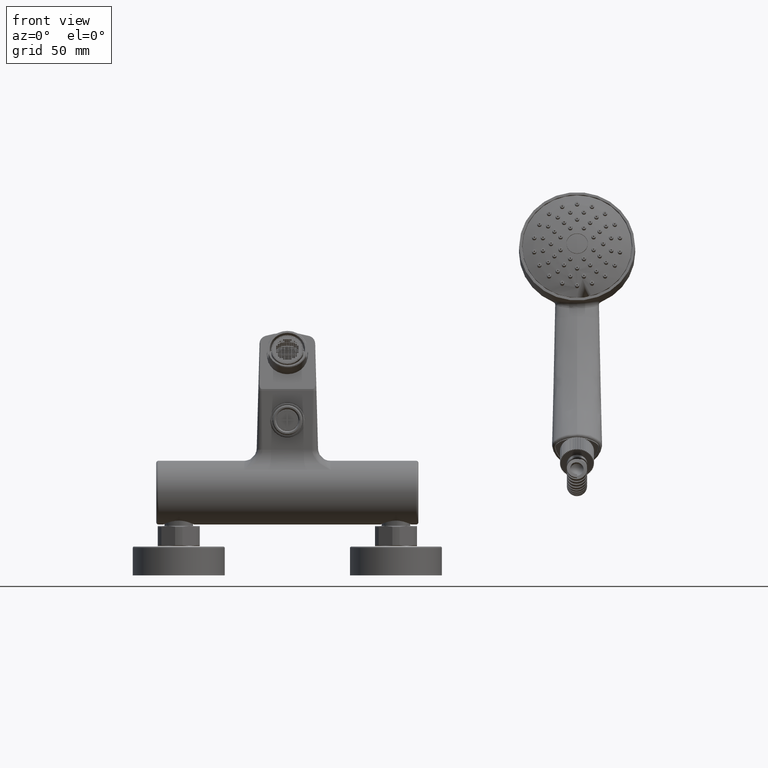
[diagram: clean part render]
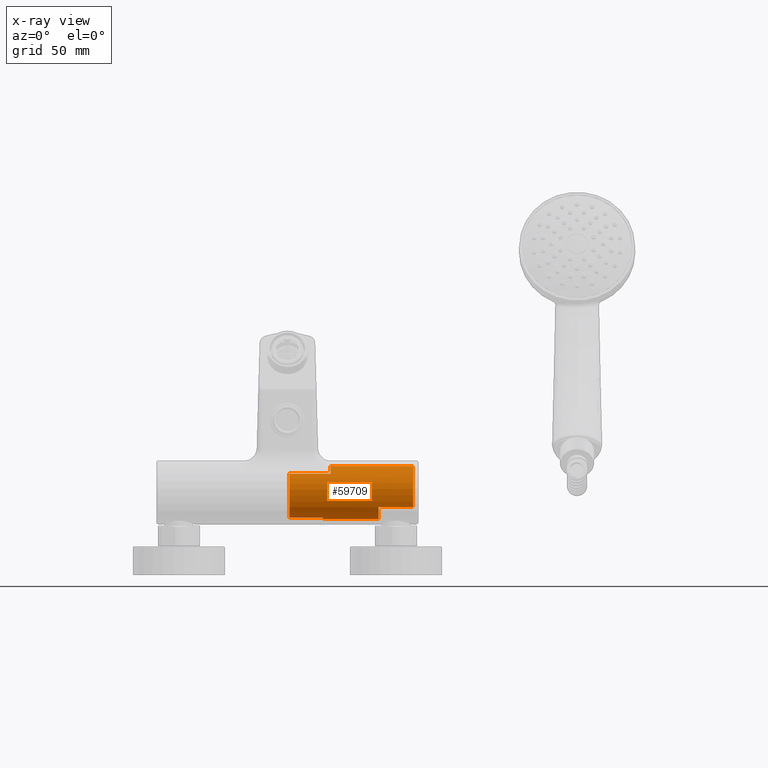
[diagram: x-ray — body ghosted, one internal face saturated and labeled with its STEP entity id]
A machine part, front view, then the same camera in x-ray: the body is ghosted and one INTERNAL B-rep face — a face not visible from any outside direction — is saturated and labeled: STEP entity #59709.
In plain terms, the highlighted cylindrical surface (edge-blend (fillet) strip) has radius 18.25 mm, axis along (1, 0, 0).
Its self-contained STEP definition (entity closure, byte-faithful):
#7910=CARTESIAN_POINT('',(8.675E1,0.E0,0.E0));
#7911=DIRECTION('',(1.E0,0.E0,0.E0));
#7912=DIRECTION('',(0.E0,0.E0,1.E0));
#7913=AXIS2_PLACEMENT_3D('',#7910,#7911,#7912);
#7920=DIRECTION('',(1.E0,0.E0,0.E0));
#7921=VECTOR('',#7920,3.856582964278E1);
#7922=CARTESIAN_POINT('',(2.443417035722E1,0.E0,-1.825E1));
#7923=LINE('',#7922,#7921);
#7975=CARTESIAN_POINT('',(2.967121502715E1,0.E0,1.825E1));
#8014=CARTESIAN_POINT('',(1.5E0,0.E0,0.E0));
#8015=DIRECTION('',(1.E0,0.E0,0.E0));
#8016=DIRECTION('',(0.E0,-6.987951807229E-1,7.153218124722E-1));
#8017=AXIS2_PLACEMENT_3D('',#8014,#8015,#8016);
#8019=CARTESIAN_POINT('',(2.443417035722E1,0.E0,0.E0));
#8020=DIRECTION('',(1.E0,0.E0,0.E0));
#8021=DIRECTION('',(0.E0,-3.013698630137E-1,-9.535073180983E-1));
#8022=AXIS2_PLACEMENT_3D('',#8019,#8020,#8021);
#8024=CARTESIAN_POINT('',(6.3E1,0.E0,0.E0));
#8025=DIRECTION('',(1.E0,0.E0,0.E0));
#8026=DIRECTION('',(0.E0,-8.365142268916E-1,-5.479452054795E-1));
#8027=AXIS2_PLACEMENT_3D('',#8024,#8025,#8026);
#8029=DIRECTION('',(1.E0,0.E0,0.E0));
#8030=VECTOR('',#8029,2.375E1);
#8031=CARTESIAN_POINT('',(6.3E1,-1.526638464077E1,-1.E1));
#8032=LINE('',#8031,#8030);
#8033=DIRECTION('',(1.E0,-7.561370886673E-12,3.944886427090E-8));
#8034=VECTOR('',#8033,5.707878500798E1);
#8035=CARTESIAN_POINT('',(2.967121499202E1,4.315960981864E-10,
1.824999774831E1));
#8036=LINE('',#8035,#8034);
#8037=DIRECTION('',(-1.E0,-4.249886338930E-8,4.346182318215E-8));
#8038=VECTOR('',#8037,2.840798186962E1);
#8039=CARTESIAN_POINT('',(2.990798186962E1,-1.275301084089E1,1.305462184295E1));
#8040=LINE('',#8039,#8038);
#8111=CARTESIAN_POINT('',(2.967121499202E1,4.315960981864E-10,
1.824999774831E1));
#8112=CARTESIAN_POINT('',(2.967121517487E1,-2.240515563910E-1,
1.824999604848E1));
#8113=CARTESIAN_POINT('',(2.967159173956E1,-6.721631027621E-1,
1.824174930379E1));
#8114=CARTESIAN_POINT('',(2.967328327208E1,-1.343475722294E0,1.820462063237E1));
#8115=CARTESIAN_POINT('',(2.967610010158E1,-2.012927432151E0,1.814280212180E1));
#8116=CARTESIAN_POINT('',(2.968003910489E1,-2.679649330313E0,1.805637367450E1));
#8117=CARTESIAN_POINT('',(2.968509400366E1,-3.342772963334E0,1.794544631980E1));
#8118=CARTESIAN_POINT('',(2.969126030541E1,-4.001413682348E0,1.781016237659E1));
#8119=CARTESIAN_POINT('',(2.969852581563E1,-4.654658284324E0,1.765070431115E1));
#8120=CARTESIAN_POINT('',(2.970688580268E1,-5.301603645379E0,1.746728971784E1));
#8121=CARTESIAN_POINT('',(2.971632334536E1,-5.941362899608E0,1.726016869084E1));
#8122=CARTESIAN_POINT('',(2.972683144145E1,-6.573074341941E0,1.702961885504E1));
#8123=CARTESIAN_POINT('',(2.973839125109E1,-7.195883891281E0,1.677594975261E1));
#8124=CARTESIAN_POINT('',(2.975098867112E1,-7.808950733173E0,1.649950107564E1));
#8125=CARTESIAN_POINT('',(2.976461131076E1,-8.411442053028E0,1.620064509537E1));
#8126=CARTESIAN_POINT('',(2.977923004345E1,-9.002537991364E0,1.587978527959E1));
#8127=CARTESIAN_POINT('',(2.979483688182E1,-9.581436466519E0,1.553735366794E1));
#8128=CARTESIAN_POINT('',(2.981140721969E1,-1.014735159540E1,1.517381142325E1));
#8129=CARTESIAN_POINT('',(2.982890954443E1,-1.069951341874E1,1.478964917176E1));
#8130=CARTESIAN_POINT('',(2.984733565505E1,-1.123717020578E1,1.438538607583E1));
#8131=CARTESIAN_POINT('',(2.986665198626E1,-1.175958988721E1,1.396156774396E1));
#8132=CARTESIAN_POINT('',(2.988682649703E1,-1.226606242629E1,1.351876845520E1));
#8133=CARTESIAN_POINT('',(2.990084042836E1,-1.259261650643E1,1.321130989619E1));
#8134=CARTESIAN_POINT('',(2.990798186962E1,-1.275301084089E1,1.305462184295E1));
#8271=DIRECTION('',(-1.E0,0.E0,0.E0));
#8272=VECTOR('',#8271,2.293417035722E1);
#8273=CARTESIAN_POINT('',(2.443417035722E1,-5.5E0,-1.740150855529E1));
#8274=LINE('',#8273,#8272);
#42397=VERTEX_POINT('',#7975);
#42412=VERTEX_POINT('',#8134);
#42416=CARTESIAN_POINT('',(8.675E1,0.E0,1.825E1));
#42417=VERTEX_POINT('',#42416);
#42519=CARTESIAN_POINT('',(2.443417035722E1,-5.5E0,-1.740150855529E1));
#42521=VERTEX_POINT('',#42519);
#42523=CARTESIAN_POINT('',(2.443417035722E1,0.E0,-1.825E1));
#42525=VERTEX_POINT('',#42523);
#42551=CARTESIAN_POINT('',(8.675E1,-1.526638464077E1,-1.E1));
#42553=VERTEX_POINT('',#42551);
#42559=CARTESIAN_POINT('',(6.3E1,0.E0,-1.825E1));
#42561=VERTEX_POINT('',#42559);
#42565=CARTESIAN_POINT('',(6.3E1,-1.526638464077E1,-1.E1));
#42566=VERTEX_POINT('',#42565);
#42571=CARTESIAN_POINT('',(1.5E0,-1.275301204819E1,1.305462307762E1));
#42572=CARTESIAN_POINT('',(1.5E0,-5.5E0,-1.740150855529E1));
#42573=VERTEX_POINT('',#42571);
#42574=VERTEX_POINT('',#42572);
#59687=CARTESIAN_POINT('',(-9.E1,0.E0,0.E0));
#59688=DIRECTION('',(1.E0,0.E0,0.E0));
#59689=DIRECTION('',(0.E0,0.E0,-1.E0));
#59690=AXIS2_PLACEMENT_3D('',#59687,#59688,#59689);
#59691=CYLINDRICAL_SURFACE('',#59690,1.825E1);
#59693=ORIENTED_EDGE('',*,*,#59692,.T.);
#59695=ORIENTED_EDGE('',*,*,#59694,.F.);
#59697=ORIENTED_EDGE('',*,*,#59696,.T.);
#59698=ORIENTED_EDGE('',*,*,#59639,.T.);
#59699=ORIENTED_EDGE('',*,*,#59670,.F.);
#59700=ORIENTED_EDGE('',*,*,#59581,.T.);
#59701=ORIENTED_EDGE('',*,*,#59615,.F.);
#59702=ORIENTED_EDGE('',*,*,#59649,.F.);
#59704=ORIENTED_EDGE('',*,*,#59703,.T.);
#59706=ORIENTED_EDGE('',*,*,#59705,.T.);
#59707=EDGE_LOOP('',(#59693,#59695,#59697,#59698,#59699,#59700,#59701,#59702,
#59704,#59706));
#59708=FACE_OUTER_BOUND('',#59707,.F.);
#59709=ADVANCED_FACE('',(#59708),#59691,.F.);
#7914=CIRCLE('',#7913,1.825E1);
#8018=CIRCLE('',#8017,1.825E1);
#8023=CIRCLE('',#8022,1.825E1);
#8028=CIRCLE('',#8027,1.825E1);
#8135=B_SPLINE_CURVE_WITH_KNOTS('',3,(#8111,#8112,#8113,#8114,#8115,#8116,#8117,
#8118,#8119,#8120,#8121,#8122,#8123,#8124,#8125,#8126,#8127,#8128,#8129,#8130,
#8131,#8132,#8133,#8134),.UNSPECIFIED.,.F.,.F.,(4,1,1,1,1,1,1,1,1,1,1,1,1,1,1,1,
1,1,1,1,1,4),(0.E0,4.761904761905E-2,9.523809523810E-2,1.428571428571E-1,
1.904761904762E-1,2.380952380952E-1,2.857142857143E-1,3.333333333333E-1,
3.809523809524E-1,4.285714285714E-1,4.761904761905E-1,5.238095238095E-1,
5.714285714286E-1,6.190476190476E-1,6.666666666667E-1,7.142857142857E-1,
7.619047619048E-1,8.095238095238E-1,8.571428571429E-1,9.047619047619E-1,
9.523809523810E-1,1.E0),.UNSPECIFIED.);
#59581=EDGE_CURVE('',#42566,#42553,#8032,.T.);
#59615=EDGE_CURVE('',#42417,#42553,#7914,.T.);
#59639=EDGE_CURVE('',#42525,#42561,#7923,.T.);
#59649=EDGE_CURVE('',#42397,#42417,#8036,.T.);
#59670=EDGE_CURVE('',#42566,#42561,#8028,.T.);
#59692=EDGE_CURVE('',#42573,#42574,#8018,.T.);
#59694=EDGE_CURVE('',#42521,#42574,#8274,.T.);
#59696=EDGE_CURVE('',#42521,#42525,#8023,.T.);
#59703=EDGE_CURVE('',#42397,#42412,#8135,.T.);
#59705=EDGE_CURVE('',#42412,#42573,#8040,.T.);